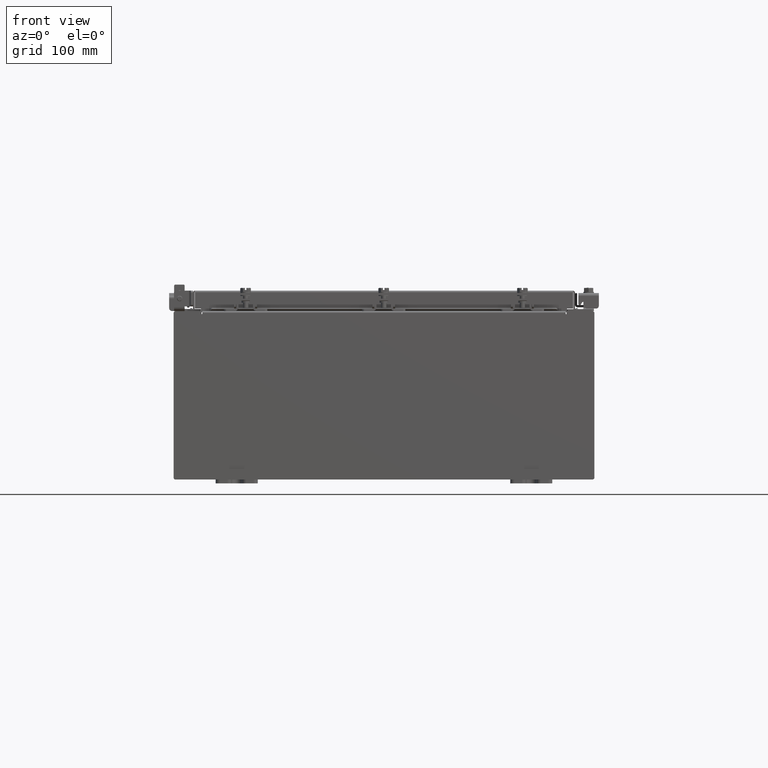
[diagram: clean part render]
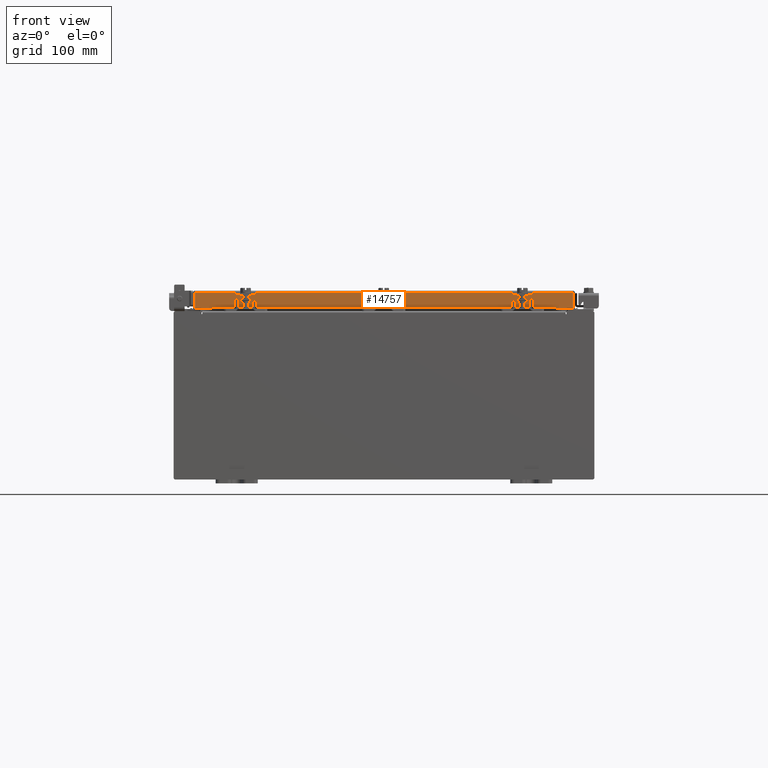
[diagram: same view with one face highlighted and labeled with its STEP entity id]
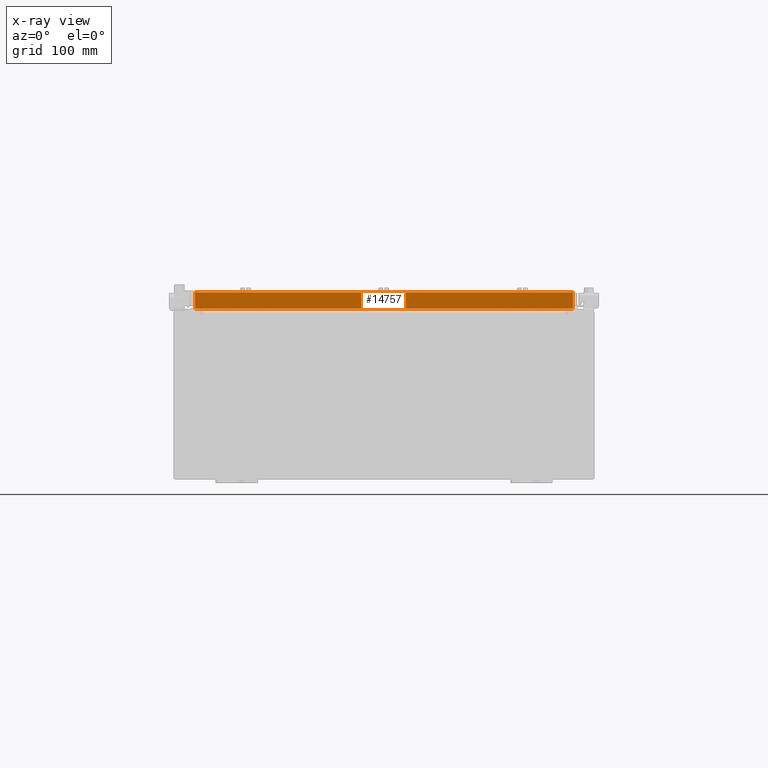
[diagram: x-ray of the same camera — body ghosted, the highlighted face saturated]
A machine part, front view. The second image highlights one B-rep face of the part: STEP entity #14757.
The next image is the same camera in x-ray: the body ghosted, the highlighted face saturated — about 0% of this face is hidden behind the body in this view.
In plain terms, the highlighted planar face has unit normal (-0, 1, -0).
Its self-contained STEP definition (entity closure, byte-faithful):
#603 = VERTEX_POINT ( 'NONE', #11737 ) ;
#889 = CARTESIAN_POINT ( 'NONE',  ( 8.239157864376267100, -11.09399999999999900, -0.8500000000000017500 ) ) ;
#1277 = VECTOR ( 'NONE', #21365, 39.37007874015748100 ) ;
#1781 = CARTESIAN_POINT ( 'NONE',  ( 8.989157864376268800, -11.09400000000000100, -0.07469999999999978000 ) ) ;
#2085 = LINE ( 'NONE', #8345, #20126 ) ;
#2203 = CARTESIAN_POINT ( 'NONE',  ( 9.077999999999999400, -11.09400000000000300, -0.8499999999999996400 ) ) ;
#2811 = VERTEX_POINT ( 'NONE', #18570 ) ;
#3546 = VERTEX_POINT ( 'NONE', #9175 ) ;
#3563 = VERTEX_POINT ( 'NONE', #9404 ) ;
#4665 = CARTESIAN_POINT ( 'NONE',  ( -8.239157864376267100, -11.09399999999999900, -0.8500000000000017500 ) ) ;
#4822 = VECTOR ( 'NONE', #17483, 39.37007874015748100 ) ;
#5812 = LINE ( 'NONE', #9695, #9901 ) ;
#5870 = AXIS2_PLACEMENT_3D ( 'NONE', #9801, #22030, #11577 ) ;
#6108 = ORIENTED_EDGE ( 'NONE', *, *, #12549, .F. ) ;
#6745 = DIRECTION ( 'NONE',  ( 1.000000000000000000, 1.203722403024567300E-016, -2.407444806049142000E-016 ) ) ;
#7742 = EDGE_CURVE ( 'NONE', #603, #3546, #9999, .T. ) ;
#7765 = ORIENTED_EDGE ( 'NONE', *, *, #11186, .T. ) ;
#8345 = CARTESIAN_POINT ( 'NONE',  ( -8.989157864376267100, -11.09400000000000100, 3.153347883512815000E-014 ) ) ;
#8677 = CARTESIAN_POINT ( 'NONE',  ( 8.239157864376268800, -11.09399999999999900, -0.8500000000000017500 ) ) ;
#9175 = CARTESIAN_POINT ( 'NONE',  ( 8.989157864376268800, -11.09400000000000300, -0.8499999999999996400 ) ) ;
#9269 = VERTEX_POINT ( 'NONE', #889 ) ;
#9297 = FACE_OUTER_BOUND ( 'NONE', #18173, .T. ) ;
#9404 = CARTESIAN_POINT ( 'NONE',  ( -8.989157864376267100, -11.09400000000000100, -0.08769999999999789100 ) ) ;
#9695 = CARTESIAN_POINT ( 'NONE',  ( 9.077999999999999400, -11.09400000000000300, -0.8499999999999996400 ) ) ;
#9801 = CARTESIAN_POINT ( 'NONE',  ( 1.335409633915462800E-015, -11.09400000000000100, 3.153347883512815000E-014 ) ) ;
#9901 = VECTOR ( 'NONE', #21887, 39.37007874015748100 ) ;
#9999 = LINE ( 'NONE', #1781, #4822 ) ;
#10744 = ORIENTED_EDGE ( 'NONE', *, *, #13053, .F. ) ;
#11186 = EDGE_CURVE ( 'NONE', #3563, #2811, #2085, .T. ) ;
#11481 = EDGE_CURVE ( 'NONE', #3546, #9269, #20381, .T. ) ;
#11577 = DIRECTION ( 'NONE',  ( 0.0000000000000000000, 2.818880942772360100E-015, 1.000000000000000000 ) ) ;
#11737 = CARTESIAN_POINT ( 'NONE',  ( 8.989157864376268800, -11.09400000000000100, -0.08770000000000007000 ) ) ;
#12549 = EDGE_CURVE ( 'NONE', #3563, #603, #13514, .T. ) ;
#13053 = EDGE_CURVE ( 'NONE', #18621, #2811, #5812, .T. ) ;
#13514 = LINE ( 'NONE', #17206, #17599 ) ;
#14757 = ADVANCED_FACE ( 'NONE', ( #9297 ), #18544, .F. ) ;
#14968 = EDGE_CURVE ( 'NONE', #9269, #18621, #16963, .T. ) ;
#15307 = VECTOR ( 'NONE', #20898, 39.37007874015748100 ) ;
#15451 = DIRECTION ( 'NONE',  ( 0.0000000000000000000, -2.818880942772360100E-015, -1.000000000000000000 ) ) ;
#16963 = LINE ( 'NONE', #8677, #15307 ) ;
#17206 = CARTESIAN_POINT ( 'NONE',  ( 9.077999999999999400, -11.09400000000000100, -0.08770000000000224800 ) ) ;
#17284 = ORIENTED_EDGE ( 'NONE', *, *, #7742, .F. ) ;
#17483 = DIRECTION ( 'NONE',  ( -0.0000000000000000000, -2.818880942772360100E-015, -1.000000000000000000 ) ) ;
#17599 = VECTOR ( 'NONE', #6745, 39.37007874015748100 ) ;
#18173 = EDGE_LOOP ( 'NONE', ( #6108, #7765, #10744, #18972, #21549, #17284 ) ) ;
#18544 = PLANE ( 'NONE',  #5870 ) ;
#18570 = CARTESIAN_POINT ( 'NONE',  ( -8.989157864376267100, -11.09400000000000700, -0.8499999999999975400 ) ) ;
#18621 = VERTEX_POINT ( 'NONE', #4665 ) ;
#18972 = ORIENTED_EDGE ( 'NONE', *, *, #14968, .F. ) ;
#20126 = VECTOR ( 'NONE', #15451, 39.37007874015748100 ) ;
#20381 = LINE ( 'NONE', #2203, #1277 ) ;
#20898 = DIRECTION ( 'NONE',  ( -1.000000000000000000, 0.0000000000000000000, 0.0000000000000000000 ) ) ;
#21365 = DIRECTION ( 'NONE',  ( -1.000000000000000000, -1.203722403024570700E-016, 1.203722403024570700E-016 ) ) ;
#21549 = ORIENTED_EDGE ( 'NONE', *, *, #11481, .F. ) ;
#21887 = DIRECTION ( 'NONE',  ( -1.000000000000000000, -1.203722403024570700E-016, 1.203722403024570700E-016 ) ) ;
#22030 = DIRECTION ( 'NONE',  ( -1.203722403024574200E-016, 1.000000000000000000, -2.818880942772360100E-015 ) ) ;